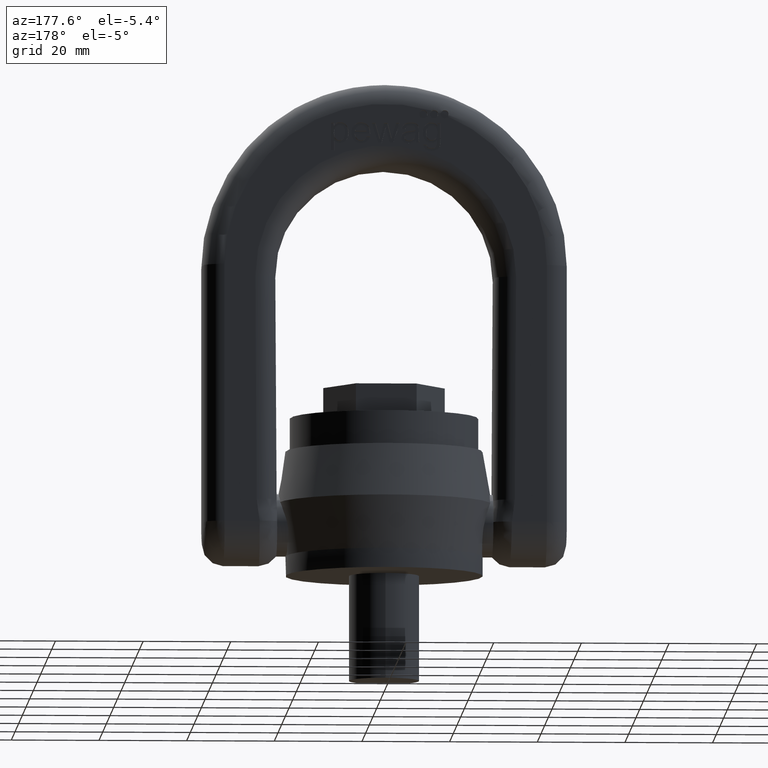
[diagram: clean part render]
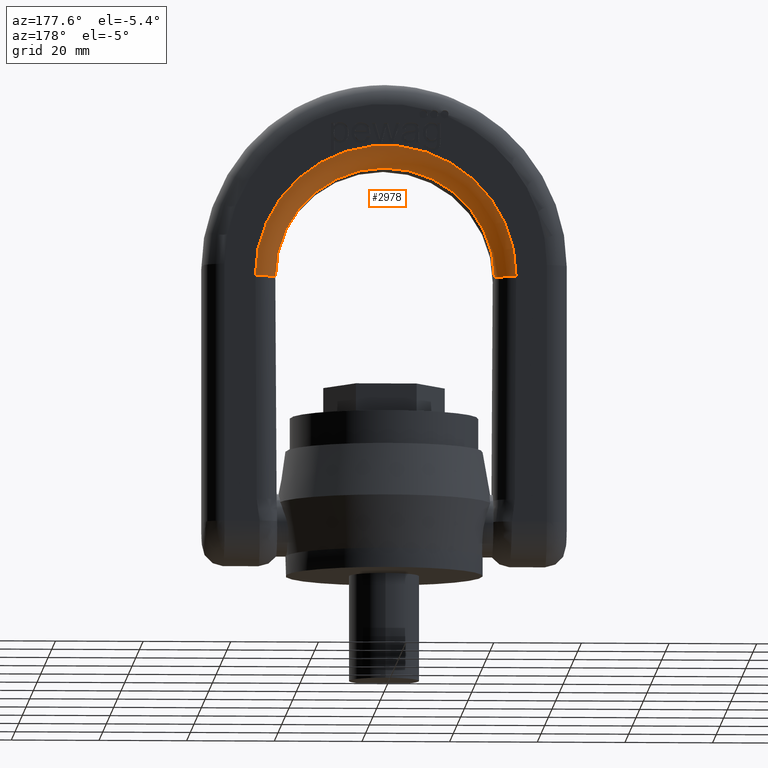
[diagram: same view with one face highlighted and labeled with its STEP entity id]
A machine part, auxiliary view. The second image highlights one B-rep face of the part: STEP entity #2978.
In plain terms, the highlighted toroidal blend (fillet) surface has major radius 29.75 mm and minor (blend) radius 4.75 mm.
Its self-contained STEP definition (entity closure, byte-faithful):
#212=TOROIDAL_SURFACE('',#5807,29.75,4.75);
#2624=FACE_OUTER_BOUND('',#3338,.T.);
#2978=ADVANCED_FACE('',(#2624),#212,.T.);
#3338=EDGE_LOOP('',(#4539,#4540,#4541,#4542));
#4539=ORIENTED_EDGE('',*,*,#5543,.T.);
#4540=ORIENTED_EDGE('',*,*,#5082,.F.);
#4541=ORIENTED_EDGE('',*,*,#5544,.T.);
#4542=ORIENTED_EDGE('',*,*,#5297,.F.);
#4666=VERTEX_POINT('',#7060);
#4668=VERTEX_POINT('',#7066);
#4798=VERTEX_POINT('',#8231);
#4799=VERTEX_POINT('',#8233);
#5082=EDGE_CURVE('',#4666,#4668,#5563,.T.);
#5297=EDGE_CURVE('',#4798,#4799,#5572,.T.);
#5543=EDGE_CURVE('',#4798,#4668,#5599,.T.);
#5544=EDGE_CURVE('',#4666,#4799,#5600,.T.);
#5563=CIRCLE('',#5649,25.);
#5572=CIRCLE('',#5711,29.75);
#5599=CIRCLE('',#5803,4.75);
#5600=CIRCLE('',#5805,4.75);
#5649=AXIS2_PLACEMENT_3D('',#7065,#5986,#5987);
#5711=AXIS2_PLACEMENT_3D('',#8232,#6251,#6252);
#5803=AXIS2_PLACEMENT_3D('',#9650,#6584,#6585);
#5805=AXIS2_PLACEMENT_3D('',#9652,#6588,#6589);
#5807=AXIS2_PLACEMENT_3D('',#9654,#6592,#6593);
#5986=DIRECTION('',(2.34291072916505E-15,1.,0.));
#5987=DIRECTION('',(1.,-2.35922392732846E-15,0.));
#6251=DIRECTION('',(-2.34291072916505E-15,-1.,0.));
#6252=DIRECTION('',(1.,-2.33240131223772E-15,0.));
#6584=DIRECTION('',(0.00584341179519104,-1.28042572053697E-17,0.999982927123554));
#6585=DIRECTION('',(0.999982927123555,0.,-0.00584341179519104));
#6588=DIRECTION('',(-0.00584341179519104,8.53617147024647E-18,0.999982927123554));
#6589=DIRECTION('',(0.999982927123554,0.,0.00584341179519104));
#6592=DIRECTION('',(-2.34291072916505E-15,-1.,0.));
#6593=DIRECTION('',(1.,-2.33810555457743E-15,0.));
#7060=CARTESIAN_POINT('',(-24.9995731780889,4.75000000000007,67.8539147051202));
#7065=CARTESIAN_POINT('',(0.,4.74999999999999,68.));
#7066=CARTESIAN_POINT('',(24.9995731780889,4.74999999999993,67.8539147051202));
#8231=CARTESIAN_POINT('',(29.7494920819258,9.49999999999993,67.8261584990931));
#8232=CARTESIAN_POINT('',(1.1128825963534E-14,9.5,68.));
#8233=CARTESIAN_POINT('',(-29.7494920819257,9.50000000000007,67.8261584990931));
#9650=CARTESIAN_POINT('',(29.7494920819258,4.74999999999993,67.8261584990931));
#9652=CARTESIAN_POINT('',(-29.7494920819258,4.75000000000007,67.8261584990931));
#9654=CARTESIAN_POINT('',(0.,4.75,68.));